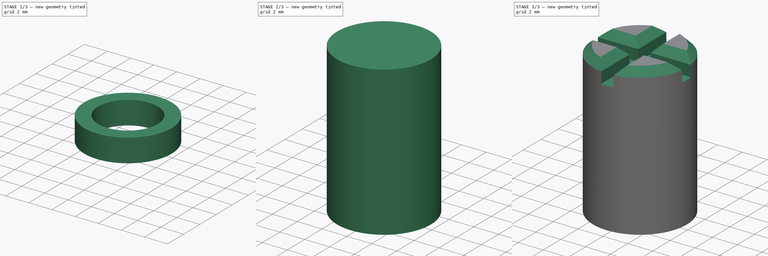
[diagram: build sequence overview — one tinted view per stage of 3, left to right]
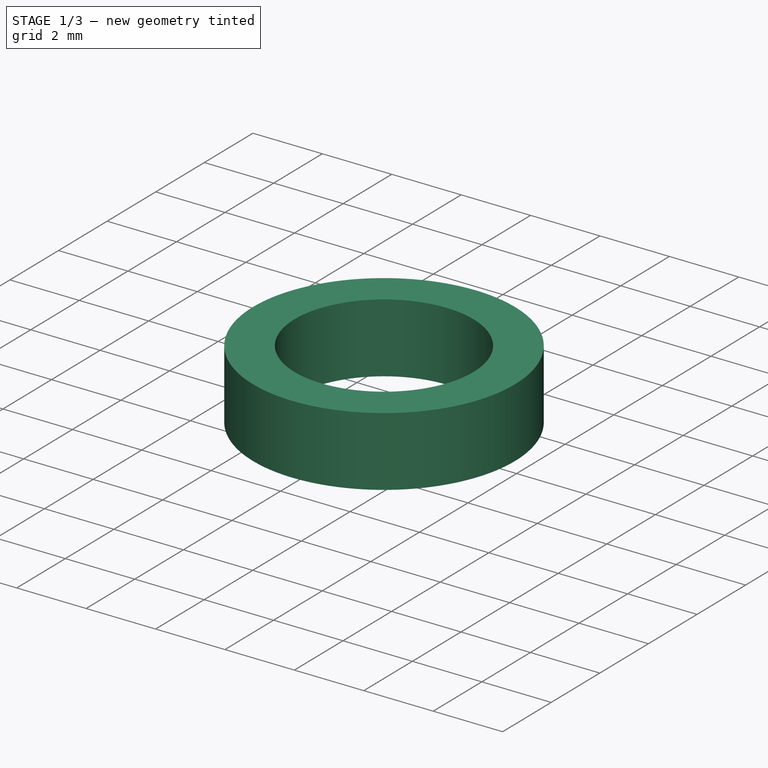
[diagram: stage 1 of 3 — iso view after this stage's code; geometry added in this stage tinted green]
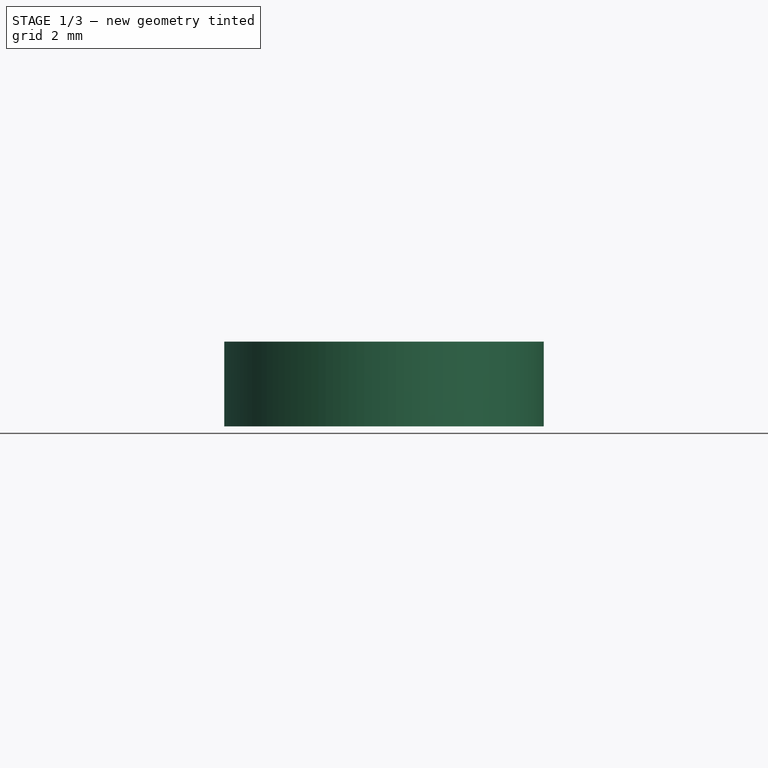
[diagram: stage 1 of 3 — front view after this stage's code; geometry added in this stage tinted green]
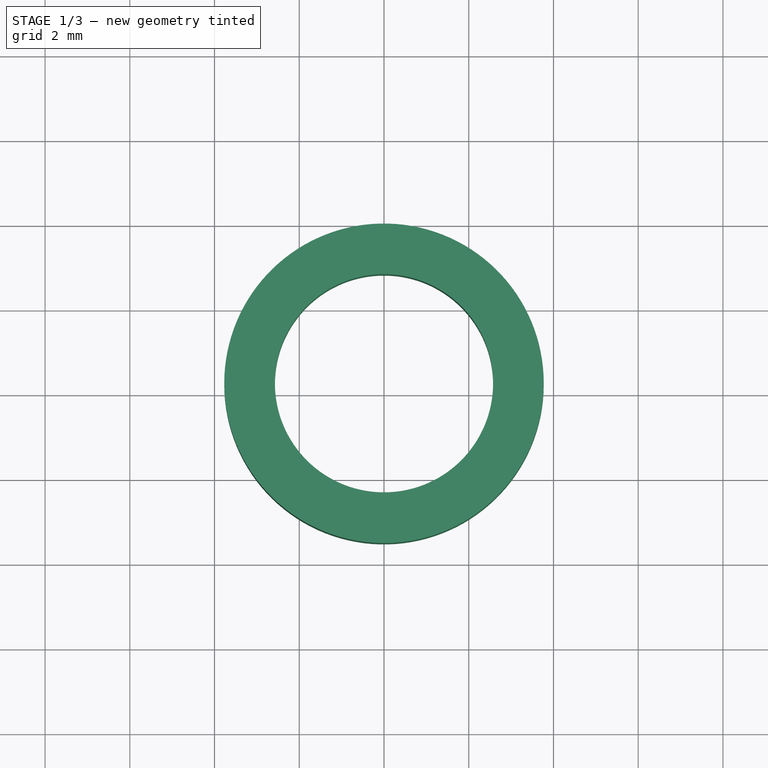
[diagram: stage 1 of 3 — top view after this stage's code; geometry added in this stage tinted green]
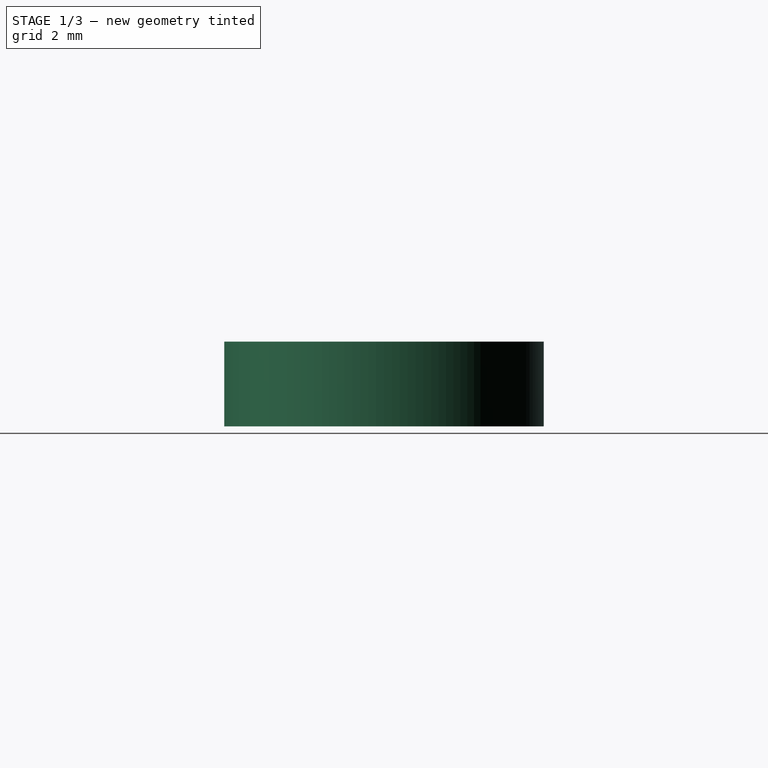
[diagram: stage 1 of 3 — right view after this stage's code; geometry added in this stage tinted green]
FCSTD DOCUMENT  (FreeCAD 1.0R39285 (Git))
Label: pot_knob
License: CERN Open Hardware Licence permissive
LicenseURL: https://cern-ohl.web.cern.ch/
objects: Sketcher::SketchObject×4, PartDesign::Pad×3, Part::Feature×2, Part::MultiFuse×1, App::Part×1, PartDesign::SubShapeBinder×1, PartDesign::Pocket×1, PartDesign::Chamfer×1, PartDesign::Body×1
note: 28 computed .brp shape members not serialized (recipe doc carries the construction recipe); baked Part::Feature solids carry a one-line shape summary decoded from their .brp

FEATURE [Part::Feature] Part__Feature  label="(Unsaved)"
  shape: bbox 6.42 x 5.646 x 1.8 mm, 24 faces (baked)
FEATURE [Part::Feature] Part__Feature001  label="(Unsaved)001"
  shape: bbox 6.48 x 7.2 x 9.25 mm, 92 faces (baked)
FEATURE [Part::MultiFuse] Fusion
  Placement = pos=(-0.239979,1.46776,-1.40334) rot=(0,0,1;0rad)
  Refine = true
  Shapes = -> [Part__Feature,Part__Feature001]
FEATURE [App::Part] _Unsaved_  label="(Unsaved)002"
  Group = -> [Part__Feature001,Part__Feature,Fusion]
  Origin = -> Origin
FEATURE [PartDesign::SubShapeBinder] Binder
  BindCopyOnChange = 0
  BindMode = 0
  ClaimChildren = false
  Context = -> Body [Binder.]
  Fuse = false
  MakeFace = true
  OffsetFill = false
  OffsetIntersection = false
  OffsetJoinType = 0
  OffsetOpenResult = false
  PartialLoad = false
  Refine = true
  Relative = true
  Support = -> [_Unsaved_[Fusion.]]
  _Version = 2
FEATURE [Sketcher::SketchObject] Sketch
  ArcFitTolerance = 1e-06
  AttachmentSupport = -> [Binder]
  ExternalGeometry = -> [Binder]
  FullyConstrained = true
  MakeInternals = false
  MapMode = 5
  Placement = pos=(0,0,1.14666) rot=(0,0,1;0rad)
  sketch-geometry (3):
    g0: Circle CenterX=2.06878e-05 CenterY=0.257762 CenterZ=0 NormalX=0 NormalY=0 NormalZ=1 AngleXU=0 Radius=2.575
    g1: Circle CenterX=2.06878e-05 CenterY=0.257762 CenterZ=0 NormalX=0 NormalY=0 NormalZ=1 AngleXU=0 Radius=3.77089
    g2: LineSegment [constr] StartX=-2.56205 StartY=0 StartZ=0 EndX=-3.76205 EndY=-1e-16 EndZ=0
  constraints (8):
    c: Coincident(g0,g-3)
    c: Coincident(g1,g0)
    c: PointOnObject(g2,g0)
    c: PointOnObject(g2,g1)
    c: Distance(g2,g2) = 1.2
    c: Diameter(g0) = 5.15
    c: Diameter(g0) = 5.15
    c: Tangent(g2,g-1) = 1.5708
FEATURE [PartDesign::Pad] Pad
  Direction = (0,0,1)
  Length = 2
  Length2 = 10
  Profile = -> Sketch
  ReferenceAxis = -> Sketch [N_Axis]
  Refine = true
  Suppressed = false
  Type = 0
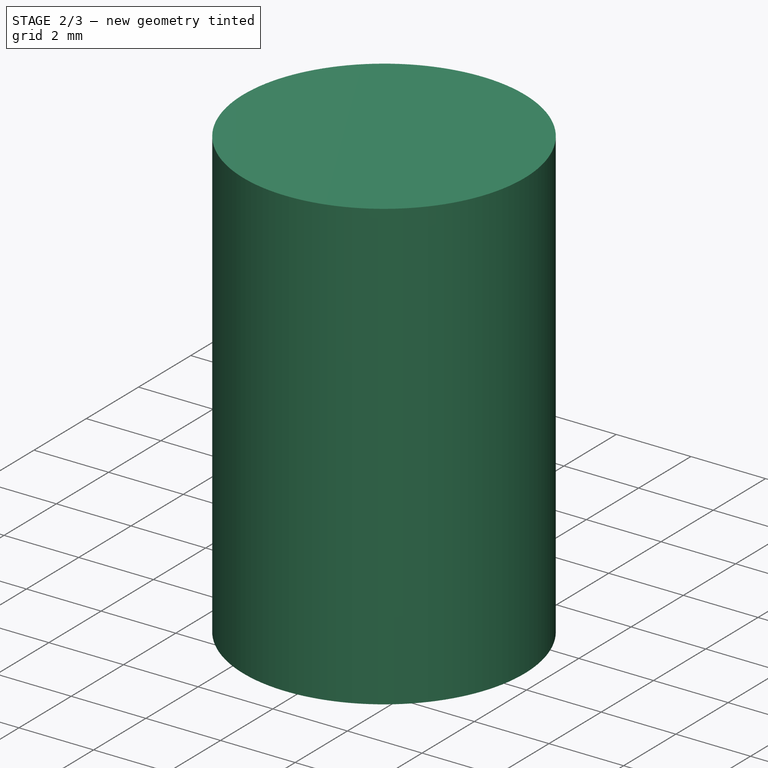
[diagram: stage 2 of 3 — iso view after this stage's code; geometry added in this stage tinted green]
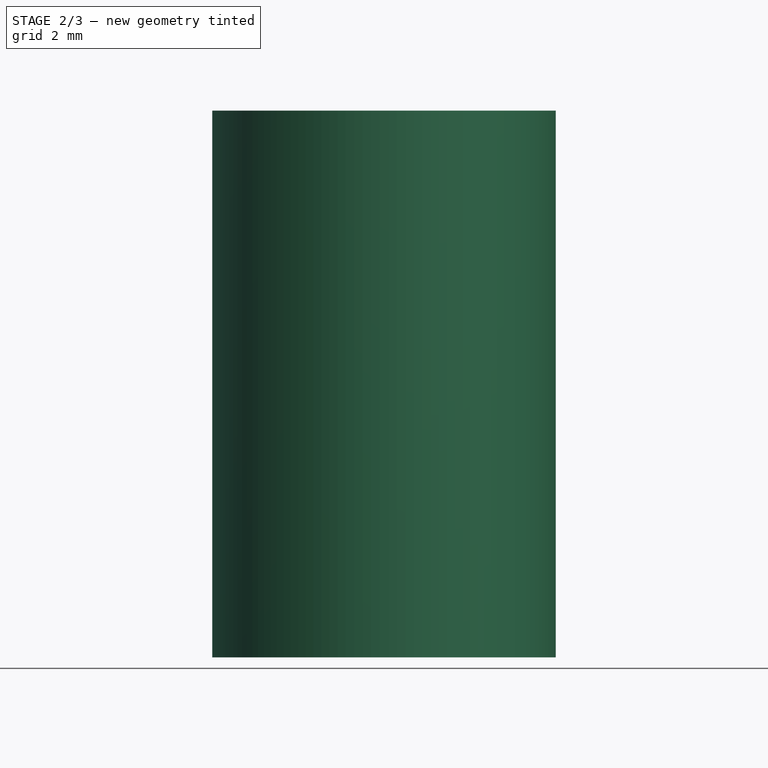
[diagram: stage 2 of 3 — front view after this stage's code; geometry added in this stage tinted green]
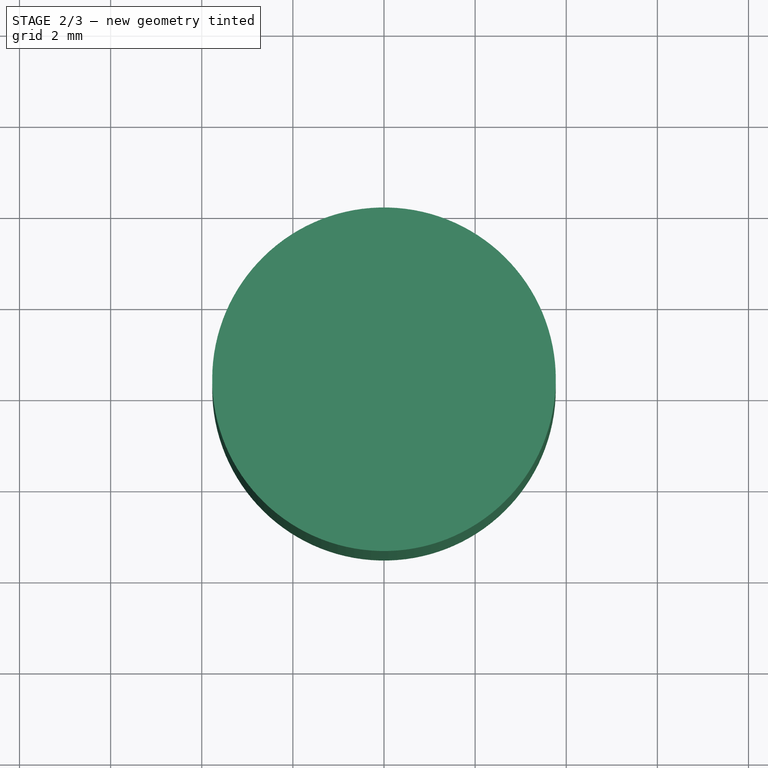
[diagram: stage 2 of 3 — top view after this stage's code; geometry added in this stage tinted green]
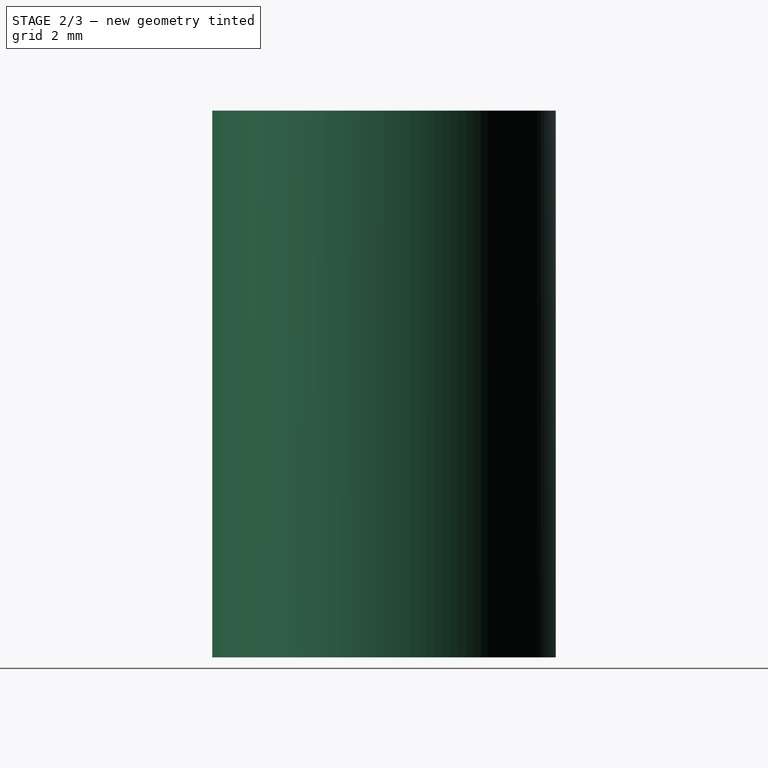
[diagram: stage 2 of 3 — right view after this stage's code; geometry added in this stage tinted green]
FEATURE [Sketcher::SketchObject] Sketch001
  ArcFitTolerance = 1e-06
  AttachmentSupport = -> [Pad]
  ExternalGeometry = -> [Pad]
  FullyConstrained = true
  MakeInternals = false
  MapMode = 5
  Placement = pos=(0,0,3.14666) rot=(0,0,1;0rad)
  sketch-geometry (1):
    g0: Circle CenterX=2.06878e-05 CenterY=0.257762 CenterZ=0 NormalX=0 NormalY=0 NormalZ=1 AngleXU=0 Radius=3.77089
  constraints (2):
    c: Coincident(g0,g-3)
    c: Equal(g0,g-3)
FEATURE [PartDesign::Pad] Pad001
  BaseFeature = -> Pad
  Direction = (0,0,1)
  Length = 10
  Length2 = 10
  Profile = -> Sketch001
  ReferenceAxis = -> Sketch001 [N_Axis]
  Refine = true
  Suppressed = false
  Type = 0
FEATURE [Sketcher::SketchObject] Sketch002
  ArcFitTolerance = 1e-06
  AttachmentSupport = -> [Pad001]
  ExternalGeometry = -> [Pad001]
  FullyConstrained = true
  MakeInternals = false
  MapMode = 5
  Placement = pos=(0,0,1.14666) rot=(1,0,0;3.14159rad)
  sketch-geometry (3):
    g0: ArcOfCircle CenterX=2.06878e-05 CenterY=-0.257762 CenterZ=0 NormalX=0 NormalY=0 NormalZ=1 AngleXU=0 Radius=2.575 StartAngle=0.8444 EndAngle=2.29719
    g1: LineSegment StartX=1.71028 StartY=1.66724 StartZ=0 EndX=-1.71024 EndY=1.66724 EndZ=0
    g2: LineSegment [constr] StartX=2.06878e-05 StartY=-0.257762 StartZ=0 EndX=2.06878e-05 EndY=-2.83276 EndZ=0
  constraints (9):
    c: Coincident(g1,g0)
    c: Coincident(g1,g0)
    c: Horizontal(g1)
    c: Coincident(g0,g-3)
    c: Equal(g0,g-3)
    c: Coincident(g2,g0)
    c: PointOnObject(g2,g-3)
    c: Vertical(g2)
    c: DistanceY(g2,g0) = 4.5
FEATURE [PartDesign::Pad] Pad002
  BaseFeature = -> Pad001
  Direction = (0,0,-1)
  Length = 3
  Length2 = 10
  Profile = -> Sketch002
  ReferenceAxis = -> Sketch002 [N_Axis]
  Refine = true
  Reversed = true
  Suppressed = false
  Type = 0
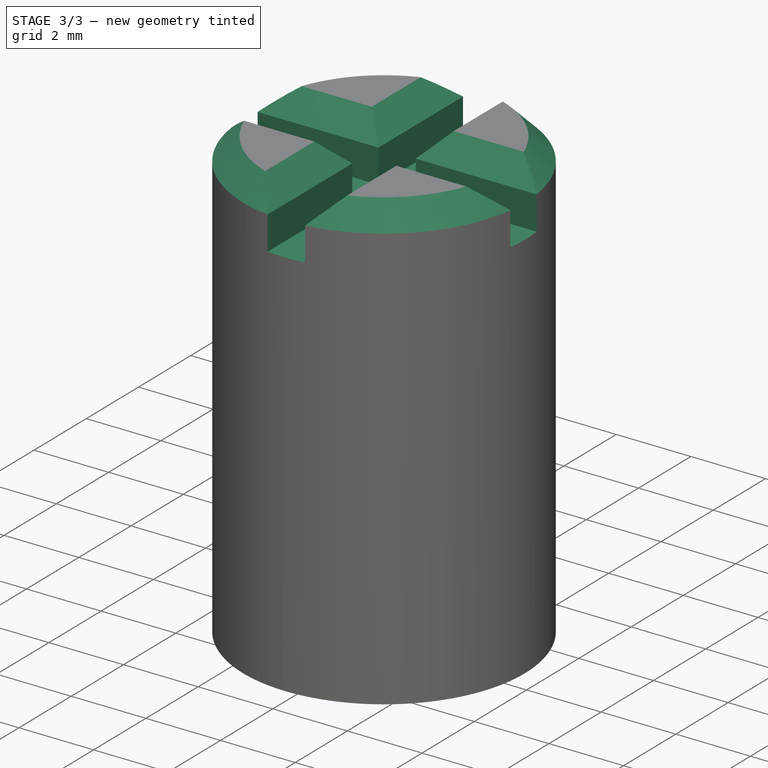
[diagram: stage 3 of 3 — iso view after this stage's code; geometry added in this stage tinted green]
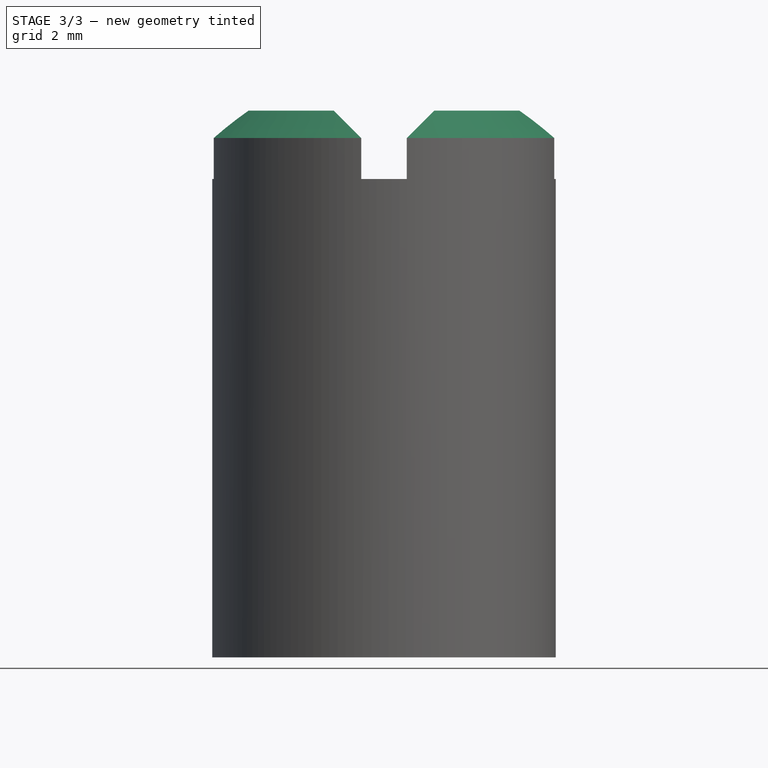
[diagram: stage 3 of 3 — front view after this stage's code; geometry added in this stage tinted green]
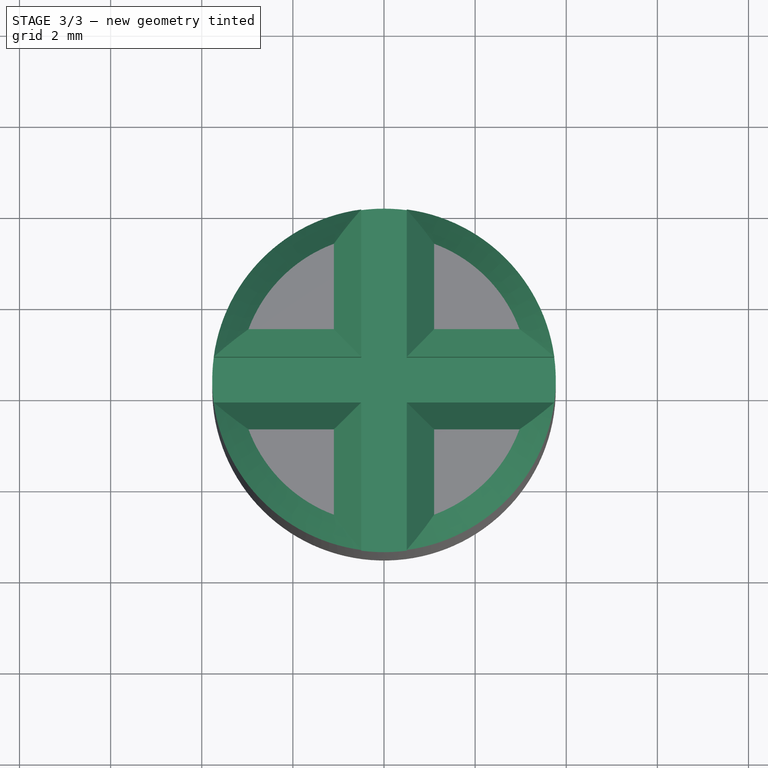
[diagram: stage 3 of 3 — top view after this stage's code; geometry added in this stage tinted green]
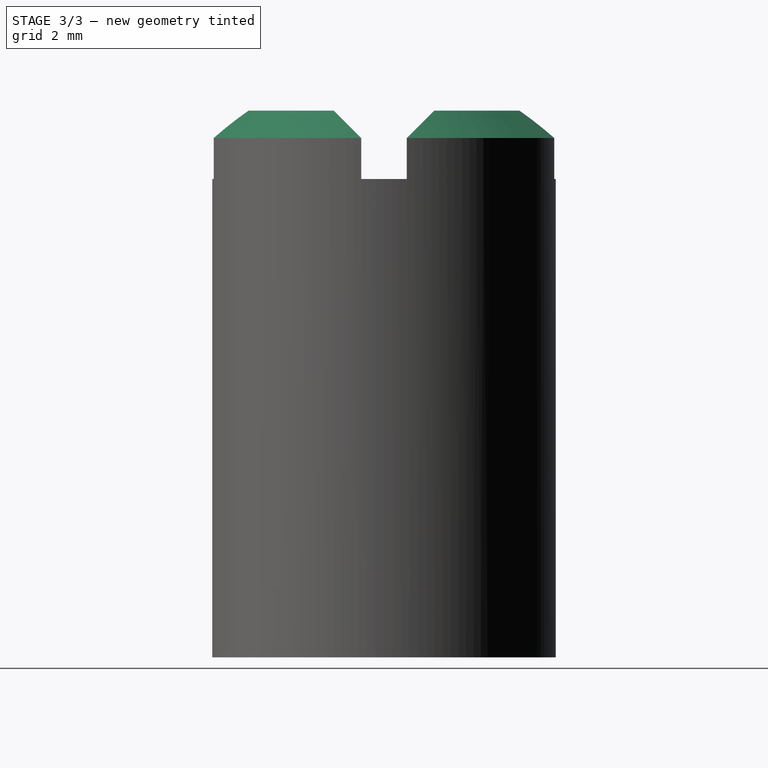
[diagram: stage 3 of 3 — right view after this stage's code; geometry added in this stage tinted green]
FEATURE [Sketcher::SketchObject] Sketch003
  ArcFitTolerance = 1e-06
  AttachmentSupport = -> [Pad002]
  ExternalGeometry = -> [Pad002]
  FullyConstrained = true
  MakeInternals = false
  MapMode = 5
  Placement = pos=(0,0,13.1467) rot=(0,0,1;0rad)
  sketch-geometry (14):
    g0: LineSegment StartX=0.500021 StartY=-3.51312 StartZ=0 EndX=0.500021 EndY=-0.242238 EndZ=0
    g1: LineSegment StartX=0.500021 StartY=4.02865 StartZ=0 EndX=-0.499979 EndY=4.02865 EndZ=0
    g2: LineSegment StartX=-0.499979 StartY=4.02865 StartZ=0 EndX=-0.499979 EndY=0.757762 EndZ=0
    g3: LineSegment StartX=-0.499979 StartY=-3.51312 StartZ=0 EndX=0.500021 EndY=-3.51312 EndZ=0
    g4: GeomPoint [constr] X=2.06878e-05 Y=0.257762 Z=0
    g5: LineSegment StartX=3.77091 StartY=-0.242238 StartZ=0 EndX=3.77091 EndY=0.757762 EndZ=0
    g6: LineSegment StartX=3.77091 StartY=0.757762 StartZ=0 EndX=0.500021 EndY=0.757762 EndZ=0
    g7: LineSegment StartX=-3.77087 StartY=0.757762 StartZ=0 EndX=-3.77087 EndY=-0.242238 EndZ=0
    g8: LineSegment StartX=-3.77087 StartY=-0.242238 StartZ=0 EndX=-0.499979 EndY=-0.242238 EndZ=0
    g9: GeomPoint [constr] X=2.06878e-05 Y=0.257762 Z=0
    g10: LineSegment StartX=-0.499979 StartY=0.757762 StartZ=0 EndX=-3.77087 EndY=0.757762 EndZ=0
    g11: LineSegment StartX=-0.499979 StartY=-0.242238 StartZ=0 EndX=-0.499979 EndY=-3.51312 EndZ=0
    g12: LineSegment StartX=0.500021 StartY=-0.242238 StartZ=0 EndX=3.77091 EndY=-0.242238 EndZ=0
    g13: LineSegment StartX=0.500021 StartY=0.757762 StartZ=0 EndX=0.500021 EndY=4.02865 EndZ=0
  constraints (37):
    c: Coincident(g13,g1)
    c: Coincident(g1,g2)
    c: Coincident(g11,g3)
    c: Coincident(g3,g0)
    c: Vertical(g0)
    c: Vertical(g2)
    c: Horizontal(g1)
    c: Horizontal(g3)
    c: Symmetric(g2,g0,g4)
    c: Coincident(g4,g-3)
    c: Coincident(g5,g6)
    c: Coincident(g10,g7)
    c: Coincident(g7,g8)
    c: Coincident(g12,g5)
    c: Vertical(g5)
    c: Vertical(g7)
    c: Horizontal(g6)
    c: Horizontal(g8)
    c: Symmetric(g7,g5,g9)
    c: Coincident(g9,g4)
    c: Tangent(g1,g-3)
    c: Tangent(g7,g-3)
    c: Equal(g3,g7)
    c: DistanceY(g7,g7) = 1
    c: PointOnObject(g6,g13)
    c: Coincident(g2,g10)
    c: Coincident(g8,g11)
    c: Coincident(g0,g12)
    c: PointOnObject(g13,g6)
    c: Horizontal(g12)
    c: Horizontal(g0,g8)
    c: Horizontal(g10)
    c: Vertical(g6,g0)
    c: Vertical(g13)
    c: Vertical(g11)
    c: Vertical(g2,g8)
    c: Horizontal(g6,g2)
FEATURE [PartDesign::Pocket] Pocket
  BaseFeature = -> Pad002
  Direction = (0,0,-1)
  Length = 1.5
  Length2 = 5
  Profile = -> Sketch003
  ReferenceAxis = -> Sketch003 [N_Axis]
  Refine = true
  Suppressed = false
  Type = 0
FEATURE [PartDesign::Chamfer] Chamfer
  Angle = 45
  Base = -> Pocket [Face9,Face1,Face15,Face12]
  BaseFeature = -> Pocket
  ChamferType = 0
  FlipDirection = false
  Refine = true
  Size = 0.6
  Size2 = 1
  SupportTransform = false
  Suppressed = false
  UseAllEdges = false
FEATURE [PartDesign::Body] Body
  AllowCompound = false
  Group = -> [Binder,Sketch,Pad,Sketch001,Pad001,Sketch002,Pad002,Sketch003,Pocket,Chamfer]
  Origin = -> Origin001
  Tip = -> Chamfer
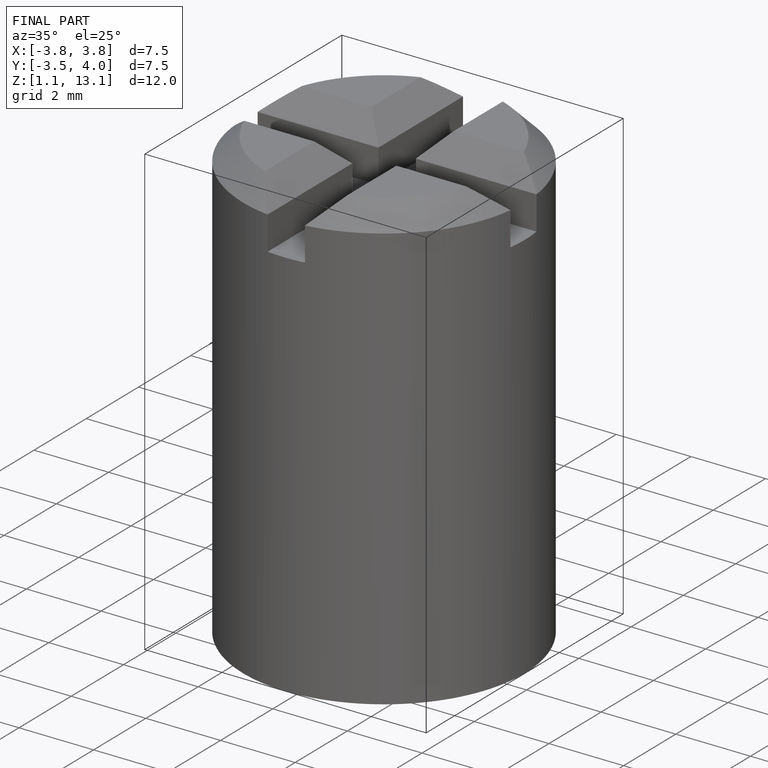
[diagram: finished part — iso view with bounding-box wireframe]
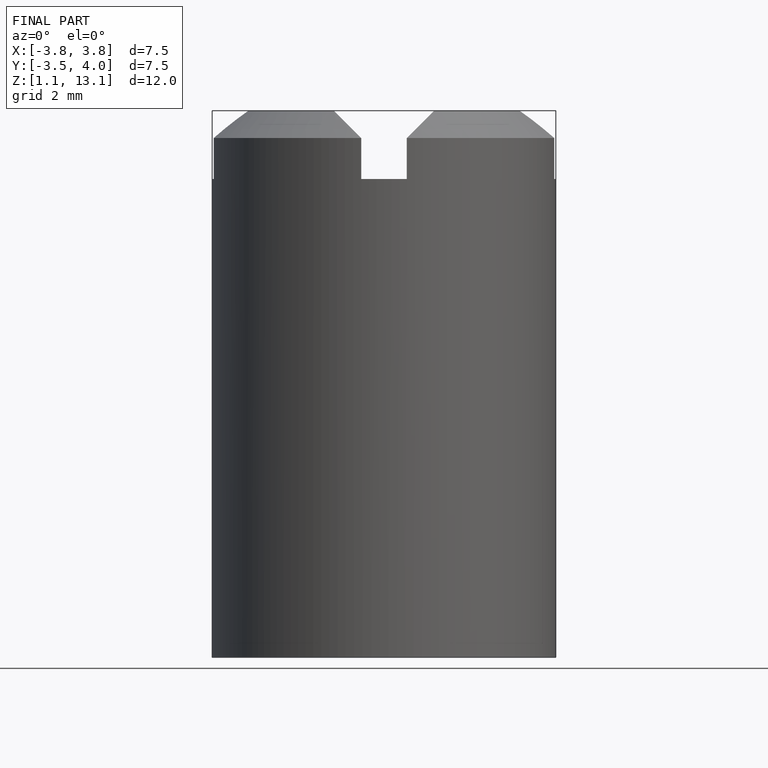
[diagram: finished part — front view with bounding-box wireframe]
